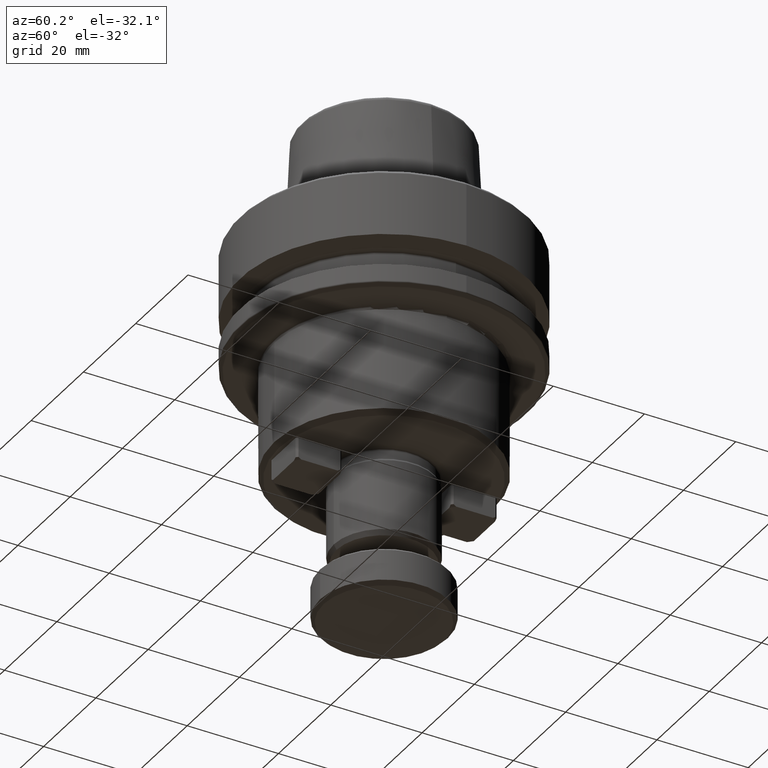
[diagram: clean part render]
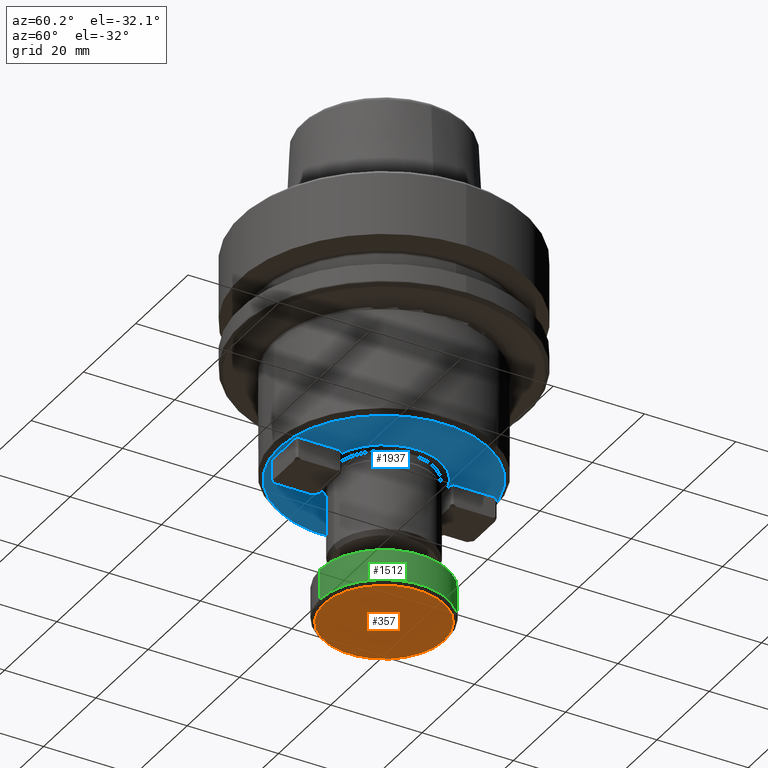
[diagram: same view with three faces highlighted in distinct colors, each labeled with its STEP entity id]
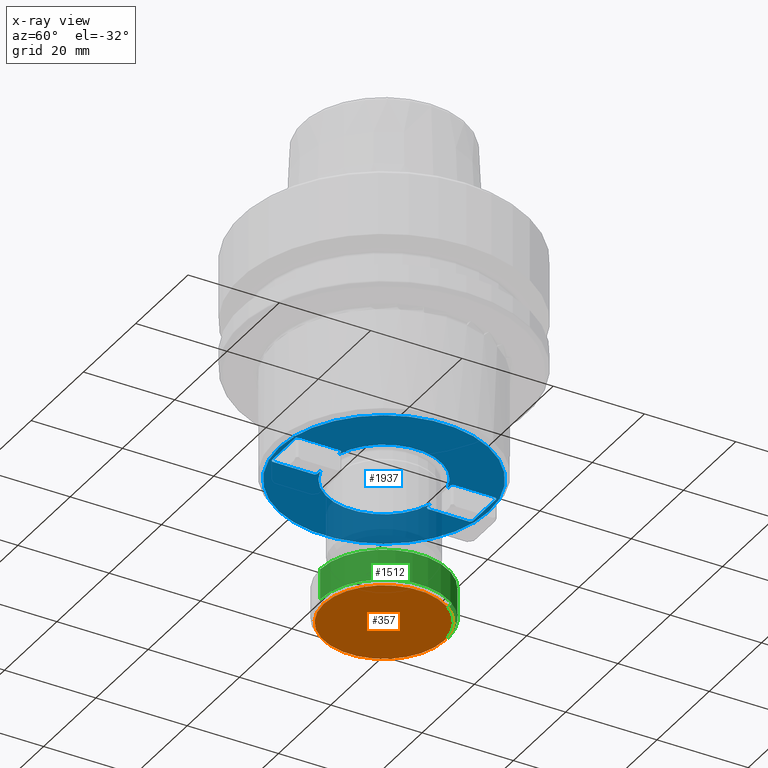
[diagram: x-ray of the same camera — body ghosted, the three highlighted faces saturated]
A machine part, auxiliary view with three faces highlighted in distinct colors.
The next image is the same camera in x-ray (body ghosted, the three faces saturated) — at least one of them is partly hidden behind the body in this view.
Their STEP definitions:

[orange] entity #357 — the highlighted planar face has unit normal (0, -0, 1).
#138 = FACE_OUTER_BOUND ( 'NONE', #733, .T. ) ;
#357 = ADVANCED_FACE ( 'NONE', ( #138 ), #2891, .F. ) ;
#374 = DIRECTION ( 'NONE',  ( 0.0000000000000000000, -2.380093774209757000E-017, 1.000000000000000000 ) ) ;
#510 = CARTESIAN_POINT ( 'NONE',  ( -12.14432970522238800, 8.913243373302247400, -18.67924354659453100 ) ) ;
#666 = CIRCLE ( 'NONE', #2448, 13.19999999999999900 ) ;
#690 = VERTEX_POINT ( 'NONE', #2149 ) ;
#733 = EDGE_LOOP ( 'NONE', ( #1713, #1803 ) ) ;
#735 = AXIS2_PLACEMENT_3D ( 'NONE', #2488, #1119, #2716 ) ;
#941 = CARTESIAN_POINT ( 'NONE',  ( -12.14432970522239000, -4.286756626697752800, -18.67924354659453100 ) ) ;
#1119 = DIRECTION ( 'NONE',  ( -0.0000000000000000000, -2.380093774209757000E-017, 1.000000000000000000 ) ) ;
#1155 = DIRECTION ( 'NONE',  ( 0.0000000000000000000, -1.000000000000000000, 0.0000000000000000000 ) ) ;
#1209 = VERTEX_POINT ( 'NONE', #510 ) ;
#1546 = EDGE_CURVE ( 'NONE', #690, #1209, #1851, .T. ) ;
#1713 = ORIENTED_EDGE ( 'NONE', *, *, #1546, .F. ) ;
#1803 = ORIENTED_EDGE ( 'NONE', *, *, #2141, .F. ) ;
#1830 = DIRECTION ( 'NONE',  ( 0.0000000000000000000, -1.000000000000000000, -2.380093774209757000E-017 ) ) ;
#1832 = AXIS2_PLACEMENT_3D ( 'NONE', #2162, #374, #1830 ) ;
#1851 = CIRCLE ( 'NONE', #735, 13.19999999999999900 ) ;
#2141 = EDGE_CURVE ( 'NONE', #1209, #690, #666, .T. ) ;
#2149 = CARTESIAN_POINT ( 'NONE',  ( -12.14432970522239000, -17.48675662669775100, -18.67924354659453100 ) ) ;
#2162 = CARTESIAN_POINT ( 'NONE',  ( -12.14432970522239000, -4.286756626697751900, -18.67924354659453100 ) ) ;
#2448 = AXIS2_PLACEMENT_3D ( 'NONE', #941, #2524, #1155 ) ;
#2488 = CARTESIAN_POINT ( 'NONE',  ( -12.14432970522239000, -4.286756626697752800, -18.67924354659453100 ) ) ;
#2524 = DIRECTION ( 'NONE',  ( -0.0000000000000000000, -2.380093774209757000E-017, 1.000000000000000000 ) ) ;
#2716 = DIRECTION ( 'NONE',  ( 0.0000000000000000000, -1.000000000000000000, 0.0000000000000000000 ) ) ;
#2891 = PLANE ( 'NONE',  #1832 ) ;

[blue] entity #1937 — the highlighted planar face has unit normal (-0, 0, -1).
#11 = LINE ( 'NONE', #778, #1120 ) ;
#19 = DIRECTION ( 'NONE',  ( -1.885568995626965000E-016, 1.000000000000000000, 7.542275982507860100E-016 ) ) ;
#20 = EDGE_CURVE ( 'NONE', #1642, #151, #967, .T. ) ;
#35 = DIRECTION ( 'NONE',  ( -0.7071067811865474600, 0.7071067811865474600, 0.0000000000000000000 ) ) ;
#47 = VECTOR ( 'NONE', #19, 1000.000000000000000 ) ;
#60 = DIRECTION ( 'NONE',  ( 1.000000000000000000, 0.0000000000000000000, 0.0000000000000000000 ) ) ;
#76 = ORIENTED_EDGE ( 'NONE', *, *, #2229, .F. ) ;
#100 = ORIENTED_EDGE ( 'NONE', *, *, #2127, .F. ) ;
#136 = EDGE_CURVE ( 'NONE', #2571, #176, #2566, .T. ) ;
#141 = VERTEX_POINT ( 'NONE', #1784 ) ;
#151 = VERTEX_POINT ( 'NONE', #814 ) ;
#176 = VERTEX_POINT ( 'NONE', #1556 ) ;
#197 = VECTOR ( 'NONE', #218, 1000.000000000000100 ) ;
#205 = EDGE_CURVE ( 'NONE', #349, #141, #2271, .T. ) ;
#218 = DIRECTION ( 'NONE',  ( -0.7071067811865474600, -0.7071067811865474600, 0.0000000000000000000 ) ) ;
#228 = VECTOR ( 'NONE', #2109, 1000.000000000000000 ) ;
#234 = CARTESIAN_POINT ( 'NONE',  ( -7.544329705222391900, 17.71324337330224800, 13.32075645340544800 ) ) ;
#240 = CARTESIAN_POINT ( 'NONE',  ( -16.74432970522239100, -26.28675662669775200, 13.32075645340544800 ) ) ;
#250 = ORIENTED_EDGE ( 'NONE', *, *, #1129, .T. ) ;
#270 = DIRECTION ( 'NONE',  ( 1.000000000000000000, 0.0000000000000000000, 0.0000000000000000000 ) ) ;
#293 = EDGE_CURVE ( 'NONE', #151, #1241, #2743, .T. ) ;
#318 = CARTESIAN_POINT ( 'NONE',  ( -12.14432970522239000, -4.286756626697751000, 13.32075645340545500 ) ) ;
#321 = CIRCLE ( 'NONE', #2195, 12.48000000000000200 ) ;
#338 = VERTEX_POINT ( 'NONE', #1084 ) ;
#349 = VERTEX_POINT ( 'NONE', #1329 ) ;
#354 = DIRECTION ( 'NONE',  ( 0.7071067811865483500, 0.7071067811865468000, 0.0000000000000000000 ) ) ;
#356 = LINE ( 'NONE', #486, #2222 ) ;
#396 = PLANE ( 'NONE',  #2659 ) ;
#423 = CARTESIAN_POINT ( 'NONE',  ( -16.74432970522239100, -16.28675662669775500, 13.32075645340545500 ) ) ;
#457 = EDGE_CURVE ( 'NONE', #1976, #829, #1645, .T. ) ;
#472 = VERTEX_POINT ( 'NONE', #948 ) ;
#474 = CARTESIAN_POINT ( 'NONE',  ( -7.144329705222389700, -25.88675662669775000, 13.32075645340544800 ) ) ;
#486 = CARTESIAN_POINT ( 'NONE',  ( -7.144329705222389700, -25.88675662669775000, 13.32075645340544800 ) ) ;
#520 = EDGE_CURVE ( 'NONE', #2202, #1642, #963, .T. ) ;
#530 = DIRECTION ( 'NONE',  ( 0.0000000000000000000, 1.000000000000000000, 0.0000000000000000000 ) ) ;
#565 = AXIS2_PLACEMENT_3D ( 'NONE', #2360, #1009, #2597 ) ;
#578 = EDGE_CURVE ( 'NONE', #1807, #1043, #2012, .T. ) ;
#744 = CARTESIAN_POINT ( 'NONE',  ( -17.14432970522239000, 8.113243373302250200, 13.32075645340545500 ) ) ;
#745 = LINE ( 'NONE', #2505, #1885 ) ;
#761 = CARTESIAN_POINT ( 'NONE',  ( -16.74432970522239100, -26.28675662669775200, 13.32075645340544800 ) ) ;
#770 = DIRECTION ( 'NONE',  ( -1.000000000000000000, 0.0000000000000000000, 0.0000000000000000000 ) ) ;
#778 = CARTESIAN_POINT ( 'NONE',  ( -16.74432970522239100, 17.71324337330224800, 13.32075645340544800 ) ) ;
#800 = ORIENTED_EDGE ( 'NONE', *, *, #136, .F. ) ;
#814 = CARTESIAN_POINT ( 'NONE',  ( -7.544329705222389200, 7.713243373302249900, 13.32075645340545500 ) ) ;
#819 = VECTOR ( 'NONE', #2318, 1000.000000000000000 ) ;
#829 = VERTEX_POINT ( 'NONE', #1068 ) ;
#849 = ORIENTED_EDGE ( 'NONE', *, *, #1812, .F. ) ;
#855 = LINE ( 'NONE', #1338, #2871 ) ;
#860 = CARTESIAN_POINT ( 'NONE',  ( -12.14432970522239000, 18.71324337330224100, 13.32075645340545500 ) ) ;
#872 = ORIENTED_EDGE ( 'NONE', *, *, #2755, .F. ) ;
#921 = EDGE_LOOP ( 'NONE', ( #927, #800, #2652, #1048, #1903, #1011, #2374, #872, #76, #2824, #2444, #1116, #1404, #1663, #2129, #1923, #849, #100, #2145, #2423 ) ) ;
#924 = CARTESIAN_POINT ( 'NONE',  ( -16.74432970522239100, -26.28675662669775200, 13.32075645340544800 ) ) ;
#927 = ORIENTED_EDGE ( 'NONE', *, *, #1257, .F. ) ;
#936 = CARTESIAN_POINT ( 'NONE',  ( -12.14432970522239000, -27.28675662669774500, 13.32075645340545500 ) ) ;
#938 = CARTESIAN_POINT ( 'NONE',  ( -16.74432970522239100, 17.71324337330224800, 13.32075645340544800 ) ) ;
#947 = DIRECTION ( 'NONE',  ( 0.7071067811865474600, -0.7071067811865474600, 0.0000000000000000000 ) ) ;
#948 = CARTESIAN_POINT ( 'NONE',  ( -17.14432970522239000, 17.31324337330224600, 13.32075645340544800 ) ) ;
#956 = DIRECTION ( 'NONE',  ( 1.885568995626965000E-016, -1.000000000000000000, 7.542275982507860100E-016 ) ) ;
#960 = DIRECTION ( 'NONE',  ( -0.0000000000000000000, 1.993611068379415200E-017, -1.000000000000000000 ) ) ;
#961 = DIRECTION ( 'NONE',  ( -9.427844978134825100E-017, -1.000000000000000000, -7.542275982507860100E-016 ) ) ;
#963 = LINE ( 'NONE', #2303, #2892 ) ;
#967 = LINE ( 'NONE', #2813, #1523 ) ;
#1009 = DIRECTION ( 'NONE',  ( -0.0000000000000000000, 1.993611068379415200E-017, -1.000000000000000000 ) ) ;
#1011 = ORIENTED_EDGE ( 'NONE', *, *, #2808, .F. ) ;
#1023 = VECTOR ( 'NONE', #35, 1000.000000000000100 ) ;
#1032 = VECTOR ( 'NONE', #1856, 1000.000000000000000 ) ;
#1043 = VERTEX_POINT ( 'NONE', #936 ) ;
#1048 = ORIENTED_EDGE ( 'NONE', *, *, #1557, .F. ) ;
#1058 = FACE_OUTER_BOUND ( 'NONE', #1437, .T. ) ;
#1059 = LINE ( 'NONE', #2790, #1540 ) ;
#1068 = CARTESIAN_POINT ( 'NONE',  ( -16.74432970522239100, 7.713243373302249900, 13.32075645340545500 ) ) ;
#1071 = DIRECTION ( 'NONE',  ( -0.0000000000000000000, 1.993611068379415200E-017, -1.000000000000000000 ) ) ;
#1084 = CARTESIAN_POINT ( 'NONE',  ( -17.14432970522238600, -25.88675662669775000, 13.32075645340544800 ) ) ;
#1116 = ORIENTED_EDGE ( 'NONE', *, *, #293, .F. ) ;
#1120 = VECTOR ( 'NONE', #1685, 1000.000000000000100 ) ;
#1129 = EDGE_CURVE ( 'NONE', #1043, #1807, #2458, .T. ) ;
#1164 = CARTESIAN_POINT ( 'NONE',  ( -7.144329705222388900, -16.68675662669775400, 13.32075645340545500 ) ) ;
#1219 = CARTESIAN_POINT ( 'NONE',  ( -12.14432970522238600, 18.71324337330224100, 13.32075645340545500 ) ) ;
#1241 = VERTEX_POINT ( 'NONE', #2803 ) ;
#1257 = EDGE_CURVE ( 'NONE', #176, #1976, #2711, .T. ) ;
#1320 = LINE ( 'NONE', #1730, #2443 ) ;
#1329 = CARTESIAN_POINT ( 'NONE',  ( -8.716444059521814200, -16.28675662669774800, 13.32075645340545500 ) ) ;
#1334 = CARTESIAN_POINT ( 'NONE',  ( -7.544329705222391000, -26.28675662669775200, 13.32075645340544800 ) ) ;
#1338 = CARTESIAN_POINT ( 'NONE',  ( -7.544329705222391900, 17.71324337330224800, 13.32075645340544800 ) ) ;
#1349 = CARTESIAN_POINT ( 'NONE',  ( -7.544329705222391000, -26.28675662669775200, 13.32075645340544800 ) ) ;
#1357 = LINE ( 'NONE', #744, #819 ) ;
#1383 = CARTESIAN_POINT ( 'NONE',  ( -7.144329705222388900, 8.113243373302250200, 13.32075645340545500 ) ) ;
#1404 = ORIENTED_EDGE ( 'NONE', *, *, #20, .F. ) ;
#1437 = EDGE_LOOP ( 'NONE', ( #250, #2630 ) ) ;
#1443 = VERTEX_POINT ( 'NONE', #2430 ) ;
#1446 = VECTOR ( 'NONE', #60, 1000.000000000000000 ) ;
#1469 = LINE ( 'NONE', #2706, #47 ) ;
#1523 = VECTOR ( 'NONE', #2745, 1000.000000000000000 ) ;
#1539 = FACE_BOUND ( 'NONE', #921, .T. ) ;
#1540 = VECTOR ( 'NONE', #1667, 1000.000000000000000 ) ;
#1547 = VERTEX_POINT ( 'NONE', #234 ) ;
#1551 = DIRECTION ( 'NONE',  ( 0.0000000000000000000, 1.000000000000000000, 1.993611068379415200E-017 ) ) ;
#1554 = VECTOR ( 'NONE', #770, 1000.000000000000000 ) ;
#1556 = CARTESIAN_POINT ( 'NONE',  ( -15.57221535092296200, -16.28675662669774800, 13.32075645340545500 ) ) ;
#1557 = EDGE_CURVE ( 'NONE', #338, #2320, #1469, .T. ) ;
#1580 = CARTESIAN_POINT ( 'NONE',  ( -16.74432970522239100, -16.28675662669775500, 13.32075645340545500 ) ) ;
#1624 = AXIS2_PLACEMENT_3D ( 'NONE', #318, #1911, #530 ) ;
#1637 = LINE ( 'NONE', #924, #1023 ) ;
#1641 = EDGE_CURVE ( 'NONE', #2071, #338, #1637, .T. ) ;
#1642 = VERTEX_POINT ( 'NONE', #1383 ) ;
#1645 = LINE ( 'NONE', #2752, #1032 ) ;
#1663 = ORIENTED_EDGE ( 'NONE', *, *, #520, .F. ) ;
#1666 = VERTEX_POINT ( 'NONE', #474 ) ;
#1667 = DIRECTION ( 'NONE',  ( 0.7071067811865483500, -0.7071067811865468000, 0.0000000000000000000 ) ) ;
#1685 = DIRECTION ( 'NONE',  ( 0.7071067811865474600, 0.7071067811865474600, -0.0000000000000000000 ) ) ;
#1687 = VECTOR ( 'NONE', #270, 1000.000000000000000 ) ;
#1726 = EDGE_CURVE ( 'NONE', #829, #1443, #1357, .T. ) ;
#1730 = CARTESIAN_POINT ( 'NONE',  ( -17.14432970522239000, -16.68675662669775400, 13.32075645340545500 ) ) ;
#1784 = CARTESIAN_POINT ( 'NONE',  ( -7.544329705222389200, -16.28675662669775500, 13.32075645340545500 ) ) ;
#1807 = VERTEX_POINT ( 'NONE', #1219 ) ;
#1812 = EDGE_CURVE ( 'NONE', #472, #2650, #11, .T. ) ;
#1853 = CARTESIAN_POINT ( 'NONE',  ( -7.544329705222391900, 17.71324337330224800, 13.32075645340544800 ) ) ;
#1856 = DIRECTION ( 'NONE',  ( -1.000000000000000000, 0.0000000000000000000, 0.0000000000000000000 ) ) ;
#1885 = VECTOR ( 'NONE', #2275, 1000.000000000000000 ) ;
#1903 = ORIENTED_EDGE ( 'NONE', *, *, #1641, .F. ) ;
#1911 = DIRECTION ( 'NONE',  ( -0.0000000000000000000, 1.993611068379415200E-017, -1.000000000000000000 ) ) ;
#1919 = CARTESIAN_POINT ( 'NONE',  ( -17.14432970522239000, -16.68675662669775400, 13.32075645340545500 ) ) ;
#1923 = ORIENTED_EDGE ( 'NONE', *, *, #1967, .F. ) ;
#1927 = EDGE_CURVE ( 'NONE', #1241, #349, #321, .T. ) ;
#1937 = ADVANCED_FACE ( 'NONE', ( #1058, #1539 ), #396, .T. ) ;
#1960 = LINE ( 'NONE', #761, #228 ) ;
#1967 = EDGE_CURVE ( 'NONE', #2650, #1547, #855, .T. ) ;
#1971 = AXIS2_PLACEMENT_3D ( 'NONE', #2312, #960, #2547 ) ;
#1976 = VERTEX_POINT ( 'NONE', #2459 ) ;
#1990 = EDGE_CURVE ( 'NONE', #1666, #2552, #2442, .T. ) ;
#2012 = CIRCLE ( 'NONE', #1624, 22.99999999999999300 ) ;
#2071 = VERTEX_POINT ( 'NONE', #240 ) ;
#2109 = DIRECTION ( 'NONE',  ( -1.000000000000000000, 0.0000000000000000000, 0.0000000000000000000 ) ) ;
#2127 = EDGE_CURVE ( 'NONE', #1443, #472, #745, .T. ) ;
#2129 = ORIENTED_EDGE ( 'NONE', *, *, #2678, .F. ) ;
#2145 = ORIENTED_EDGE ( 'NONE', *, *, #1726, .F. ) ;
#2154 = VECTOR ( 'NONE', #947, 1000.000000000000100 ) ;
#2195 = AXIS2_PLACEMENT_3D ( 'NONE', #2437, #1071, #2669 ) ;
#2199 = CARTESIAN_POINT ( 'NONE',  ( -16.74432970522239100, -16.28675662669775500, 13.32075645340545500 ) ) ;
#2202 = VERTEX_POINT ( 'NONE', #2779 ) ;
#2215 = DIRECTION ( 'NONE',  ( 1.000000000000000000, -0.0000000000000000000, -0.0000000000000000000 ) ) ;
#2222 = VECTOR ( 'NONE', #961, 1000.000000000000000 ) ;
#2229 = EDGE_CURVE ( 'NONE', #141, #2736, #1059, .T. ) ;
#2271 = LINE ( 'NONE', #1580, #1687 ) ;
#2275 = DIRECTION ( 'NONE',  ( 9.427844978134825100E-017, 1.000000000000000000, -7.542275982507860100E-016 ) ) ;
#2303 = CARTESIAN_POINT ( 'NONE',  ( -7.144329705222390600, 17.31324337330224600, 13.32075645340544800 ) ) ;
#2312 = CARTESIAN_POINT ( 'NONE',  ( -12.14432970522239000, -4.286756626697751000, 13.32075645340545500 ) ) ;
#2318 = DIRECTION ( 'NONE',  ( -0.7071067811865483500, 0.7071067811865468000, -0.0000000000000000000 ) ) ;
#2320 = VERTEX_POINT ( 'NONE', #1919 ) ;
#2360 = CARTESIAN_POINT ( 'NONE',  ( -12.14432970522239000, -4.286756626697751000, 13.32075645340545500 ) ) ;
#2364 = EDGE_CURVE ( 'NONE', #2320, #2571, #1320, .T. ) ;
#2374 = ORIENTED_EDGE ( 'NONE', *, *, #1990, .F. ) ;
#2423 = ORIENTED_EDGE ( 'NONE', *, *, #457, .F. ) ;
#2430 = CARTESIAN_POINT ( 'NONE',  ( -17.14432970522239000, 8.113243373302250200, 13.32075645340545500 ) ) ;
#2437 = CARTESIAN_POINT ( 'NONE',  ( -12.14432970522239000, -4.286756626697751000, 13.32075645340545500 ) ) ;
#2442 = LINE ( 'NONE', #1349, #197 ) ;
#2443 = VECTOR ( 'NONE', #354, 1000.000000000000000 ) ;
#2444 = ORIENTED_EDGE ( 'NONE', *, *, #1927, .F. ) ;
#2458 = CIRCLE ( 'NONE', #1971, 22.99999999999999300 ) ;
#2459 = CARTESIAN_POINT ( 'NONE',  ( -15.57221535092295600, 7.713243373302246300, 13.32075645340545500 ) ) ;
#2505 = CARTESIAN_POINT ( 'NONE',  ( -17.14432970522239000, 17.31324337330224600, 13.32075645340544800 ) ) ;
#2547 = DIRECTION ( 'NONE',  ( 0.0000000000000000000, 1.000000000000000000, 0.0000000000000000000 ) ) ;
#2552 = VERTEX_POINT ( 'NONE', #1334 ) ;
#2566 = LINE ( 'NONE', #2199, #1446 ) ;
#2571 = VERTEX_POINT ( 'NONE', #423 ) ;
#2597 = DIRECTION ( 'NONE',  ( 0.0000000000000000000, 1.000000000000000000, 0.0000000000000000000 ) ) ;
#2630 = ORIENTED_EDGE ( 'NONE', *, *, #578, .T. ) ;
#2650 = VERTEX_POINT ( 'NONE', #938 ) ;
#2652 = ORIENTED_EDGE ( 'NONE', *, *, #2364, .F. ) ;
#2659 = AXIS2_PLACEMENT_3D ( 'NONE', #860, #2890, #1551 ) ;
#2669 = DIRECTION ( 'NONE',  ( 0.0000000000000000000, 1.000000000000000000, 0.0000000000000000000 ) ) ;
#2678 = EDGE_CURVE ( 'NONE', #1547, #2202, #2764, .T. ) ;
#2706 = CARTESIAN_POINT ( 'NONE',  ( -17.14432970522238600, -25.88675662669775000, 13.32075645340544800 ) ) ;
#2711 = CIRCLE ( 'NONE', #565, 12.48000000000000200 ) ;
#2736 = VERTEX_POINT ( 'NONE', #1164 ) ;
#2743 = LINE ( 'NONE', #2792, #1554 ) ;
#2745 = DIRECTION ( 'NONE',  ( -0.7071067811865483500, -0.7071067811865468000, 0.0000000000000000000 ) ) ;
#2752 = CARTESIAN_POINT ( 'NONE',  ( -7.544329705222389200, 7.713243373302249900, 13.32075645340545500 ) ) ;
#2755 = EDGE_CURVE ( 'NONE', #2736, #1666, #356, .T. ) ;
#2764 = LINE ( 'NONE', #1853, #2154 ) ;
#2779 = CARTESIAN_POINT ( 'NONE',  ( -7.144329705222390600, 17.31324337330224600, 13.32075645340544800 ) ) ;
#2790 = CARTESIAN_POINT ( 'NONE',  ( -7.144329705222388900, -16.68675662669775400, 13.32075645340545500 ) ) ;
#2792 = CARTESIAN_POINT ( 'NONE',  ( -7.544329705222389200, 7.713243373302249900, 13.32075645340545500 ) ) ;
#2803 = CARTESIAN_POINT ( 'NONE',  ( -8.716444059521823100, 7.713243373302246300, 13.32075645340545500 ) ) ;
#2808 = EDGE_CURVE ( 'NONE', #2552, #2071, #1960, .T. ) ;
#2813 = CARTESIAN_POINT ( 'NONE',  ( -7.144329705222388900, 8.113243373302250200, 13.32075645340545500 ) ) ;
#2824 = ORIENTED_EDGE ( 'NONE', *, *, #205, .F. ) ;
#2871 = VECTOR ( 'NONE', #2215, 1000.000000000000000 ) ;
#2890 = DIRECTION ( 'NONE',  ( -0.0000000000000000000, 1.993611068379415200E-017, -1.000000000000000000 ) ) ;
#2892 = VECTOR ( 'NONE', #956, 1000.000000000000000 ) ;

[green] entity #1512 — the highlighted cylindrical surface (partial cylindrical patch) has radius 14 mm, axis along (-0, -0, 1).
#16 = AXIS2_PLACEMENT_3D ( 'NONE', #1793, #1417, #406 ) ;
#23 = ORIENTED_EDGE ( 'NONE', *, *, #1002, .T. ) ;
#28 = VERTEX_POINT ( 'NONE', #1393 ) ;
#170 = VERTEX_POINT ( 'NONE', #2683 ) ;
#200 = CYLINDRICAL_SURFACE ( 'NONE', #1441, 14.00000000000000200 ) ;
#216 = DIRECTION ( 'NONE',  ( -0.0000000000000000000, -2.380093774209757000E-017, 1.000000000000000000 ) ) ;
#226 = EDGE_CURVE ( 'NONE', #1542, #28, #1829, .T. ) ;
#262 = CARTESIAN_POINT ( 'NONE',  ( -12.14432970522238800, 9.713243373302249900, -11.17924354659456700 ) ) ;
#308 = CIRCLE ( 'NONE', #805, 14.00000000000000200 ) ;
#376 = ORIENTED_EDGE ( 'NONE', *, *, #804, .T. ) ;
#397 = CARTESIAN_POINT ( 'NONE',  ( -12.14432970522239000, -18.28675662669775900, 48.55383180005107100 ) ) ;
#406 = DIRECTION ( 'NONE',  ( 0.0000000000000000000, -1.000000000000000000, 0.0000000000000000000 ) ) ;
#420 = DIRECTION ( 'NONE',  ( 0.0000000000000000000, -1.000000000000000000, 0.0000000000000000000 ) ) ;
#428 = CARTESIAN_POINT ( 'NONE',  ( -12.14432970522239000, -18.28675662669775500, -17.87924354659455200 ) ) ;
#468 = ORIENTED_EDGE ( 'NONE', *, *, #1458, .F. ) ;
#469 = VECTOR ( 'NONE', #684, 1000.000000000000000 ) ;
#603 = CARTESIAN_POINT ( 'NONE',  ( -12.14432970522239000, -4.286756626697752800, -11.17924354659456700 ) ) ;
#684 = DIRECTION ( 'NONE',  ( -0.0000000000000000000, -2.380093774209757000E-017, 1.000000000000000000 ) ) ;
#787 = FACE_OUTER_BOUND ( 'NONE', #2544, .T. ) ;
#804 = EDGE_CURVE ( 'NONE', #1658, #170, #308, .T. ) ;
#805 = AXIS2_PLACEMENT_3D ( 'NONE', #603, #2187, #847 ) ;
#847 = DIRECTION ( 'NONE',  ( 0.0000000000000000000, 1.000000000000000000, 0.0000000000000000000 ) ) ;
#1002 = EDGE_CURVE ( 'NONE', #28, #1658, #1008, .T. ) ;
#1008 = LINE ( 'NONE', #2047, #469 ) ;
#1393 = CARTESIAN_POINT ( 'NONE',  ( -12.14432970522238800, 9.713243373302249900, -17.87924354659455200 ) ) ;
#1417 = DIRECTION ( 'NONE',  ( -0.0000000000000000000, -2.380093774209757000E-017, 1.000000000000000000 ) ) ;
#1441 = AXIS2_PLACEMENT_3D ( 'NONE', #2689, #216, #420 ) ;
#1458 = EDGE_CURVE ( 'NONE', #1542, #170, #2193, .T. ) ;
#1512 = ADVANCED_FACE ( 'NONE', ( #787 ), #200, .T. ) ;
#1542 = VERTEX_POINT ( 'NONE', #428 ) ;
#1606 = ORIENTED_EDGE ( 'NONE', *, *, #226, .T. ) ;
#1658 = VERTEX_POINT ( 'NONE', #262 ) ;
#1767 = DIRECTION ( 'NONE',  ( -0.0000000000000000000, -2.380093774209757000E-017, 1.000000000000000000 ) ) ;
#1793 = CARTESIAN_POINT ( 'NONE',  ( -12.14432970522239000, -4.286756626697752800, -17.87924354659455200 ) ) ;
#1829 = CIRCLE ( 'NONE', #16, 14.00000000000000200 ) ;
#2047 = CARTESIAN_POINT ( 'NONE',  ( -12.14432970522238800, 9.713243373302246300, 48.55383180005107100 ) ) ;
#2187 = DIRECTION ( 'NONE',  ( 0.0000000000000000000, 2.380093774209761600E-017, -1.000000000000000000 ) ) ;
#2193 = LINE ( 'NONE', #397, #2799 ) ;
#2544 = EDGE_LOOP ( 'NONE', ( #1606, #23, #376, #468 ) ) ;
#2683 = CARTESIAN_POINT ( 'NONE',  ( -12.14432970522239000, -18.28675662669775500, -11.17924354659456700 ) ) ;
#2689 = CARTESIAN_POINT ( 'NONE',  ( -12.14432970522239000, -4.286756626697754600, 48.55383180005107100 ) ) ;
#2799 = VECTOR ( 'NONE', #1767, 1000.000000000000000 ) ;